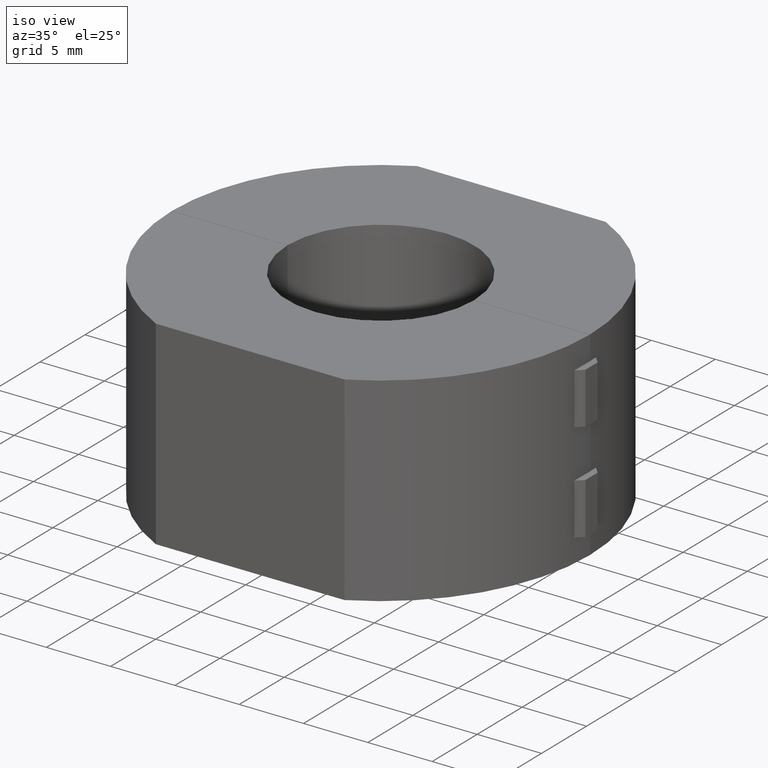
[diagram: clean part render]
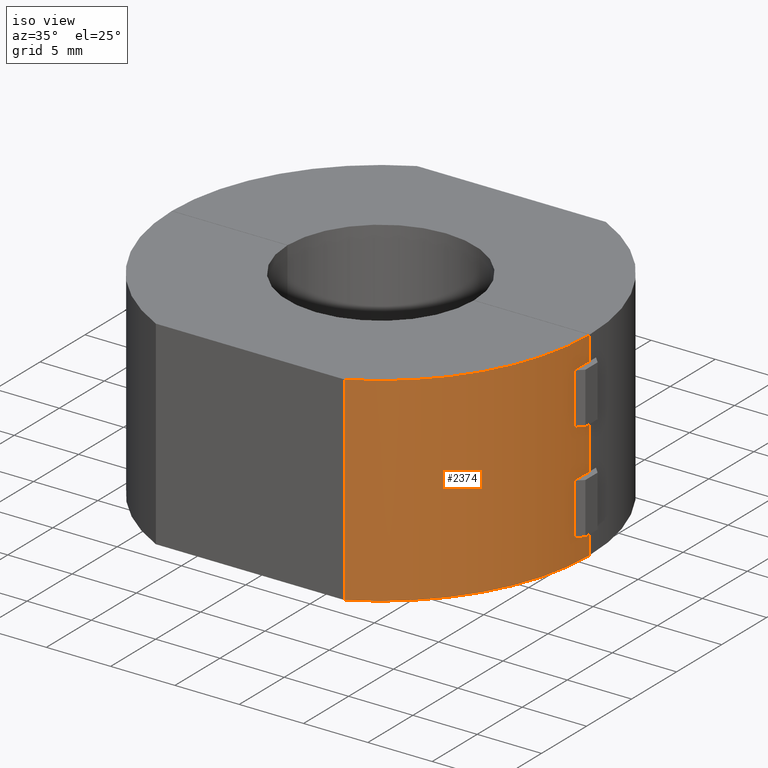
[diagram: same view with one face highlighted and labeled with its STEP entity id]
A machine part, iso view. The second image highlights one B-rep face of the part: STEP entity #2374.
In plain terms, the highlighted cylindrical surface (partial cylindrical patch) has radius 16.25 mm, axis along (0, 0, 1).
Its self-contained STEP definition (entity closure, byte-faithful):
#29 = DIRECTION ( 'NONE',  ( -0.0000000000000000000, -0.0000000000000000000, 1.000000000000000000 ) ) ;
#52 = VECTOR ( 'NONE', #29, 1000.000000000000000 ) ;
#56 = CARTESIAN_POINT ( 'NONE',  ( 0.0000000000000000000, 0.0000000000000000000, -1.874999999999999100 ) ) ;
#95 = CIRCLE ( 'NONE', #846, 16.25000000000000000 ) ;
#104 = VERTEX_POINT ( 'NONE', #2092 ) ;
#128 = CARTESIAN_POINT ( 'NONE',  ( 16.25000000000000000, -0.01000000000000000000, -7.750000000000000000 ) ) ;
#139 = DIRECTION ( 'NONE',  ( 1.000000000000000000, 0.0000000000000000000, 0.0000000000000000000 ) ) ;
#228 = ORIENTED_EDGE ( 'NONE', *, *, #2001, .T. ) ;
#249 = CIRCLE ( 'NONE', #332, 16.25000000000000000 ) ;
#273 = DIRECTION ( 'NONE',  ( -1.000000000000000000, 0.0000000000000000000, 0.0000000000000000000 ) ) ;
#295 = DIRECTION ( 'NONE',  ( -0.0000000000000000000, -0.0000000000000000000, 1.000000000000000000 ) ) ;
#298 = ORIENTED_EDGE ( 'NONE', *, *, #1196, .F. ) ;
#316 = EDGE_LOOP ( 'NONE', ( #835, #2615, #2492, #228, #1560, #1889, #707, #298, #2310, #1006, #2125, #388 ) ) ;
#330 = CARTESIAN_POINT ( 'NONE',  ( 0.0000000000000000000, 0.0000000000000000000, -5.874999999999999100 ) ) ;
#332 = AXIS2_PLACEMENT_3D ( 'NONE', #2334, #2155, #2814 ) ;
#361 = DIRECTION ( 'NONE',  ( -0.0000000000000000000, -0.0000000000000000000, 1.000000000000000000 ) ) ;
#380 = CARTESIAN_POINT ( 'NONE',  ( 0.0000000000000000000, 0.0000000000000000000, -7.750000000000000000 ) ) ;
#388 = ORIENTED_EDGE ( 'NONE', *, *, #1077, .F. ) ;
#400 = CARTESIAN_POINT ( 'NONE',  ( 7.335701109589304100, -14.49999962864724700, -7.750000000000000000 ) ) ;
#461 = EDGE_CURVE ( 'NONE', #1728, #476, #491, .T. ) ;
#476 = VERTEX_POINT ( 'NONE', #1599 ) ;
#482 = FACE_OUTER_BOUND ( 'NONE', #316, .T. ) ;
#491 = LINE ( 'NONE', #1134, #3090 ) ;
#562 = CARTESIAN_POINT ( 'NONE',  ( 16.23448336104347300, -0.7099647878610119100, 1.874999999999998200 ) ) ;
#585 = CARTESIAN_POINT ( 'NONE',  ( 16.25000000000000000, -0.01000000000000000000, 1.874999999999998200 ) ) ;
#591 = CARTESIAN_POINT ( 'NONE',  ( 7.335701109589304100, -14.50000307692278600, 7.750000000000000000 ) ) ;
#619 = CARTESIAN_POINT ( 'NONE',  ( 16.23448336104347300, -0.7099647878610119100, -5.874999999999999100 ) ) ;
#677 = CIRCLE ( 'NONE', #1319, 16.25000000000000000 ) ;
#688 = EDGE_CURVE ( 'NONE', #2659, #2994, #871, .T. ) ;
#693 = EDGE_CURVE ( 'NONE', #822, #2017, #1711, .T. ) ;
#707 = ORIENTED_EDGE ( 'NONE', *, *, #688, .T. ) ;
#789 = AXIS2_PLACEMENT_3D ( 'NONE', #380, #848, #139 ) ;
#822 = VERTEX_POINT ( 'NONE', #1828 ) ;
#827 = VECTOR ( 'NONE', #295, 1000.000000000000000 ) ;
#835 = ORIENTED_EDGE ( 'NONE', *, *, #461, .T. ) ;
#846 = AXIS2_PLACEMENT_3D ( 'NONE', #56, #2934, #273 ) ;
#848 = DIRECTION ( 'NONE',  ( 0.0000000000000000000, 0.0000000000000000000, 1.000000000000000000 ) ) ;
#862 = VERTEX_POINT ( 'NONE', #400 ) ;
#871 = LINE ( 'NONE', #2772, #1544 ) ;
#911 = VECTOR ( 'NONE', #1463, 1000.000000000000000 ) ;
#942 = EDGE_CURVE ( 'NONE', #476, #1205, #95, .T. ) ;
#960 = EDGE_CURVE ( 'NONE', #862, #2795, #1732, .T. ) ;
#1006 = ORIENTED_EDGE ( 'NONE', *, *, #2491, .T. ) ;
#1059 = DIRECTION ( 'NONE',  ( -0.0000000000000000000, -0.0000000000000000000, 1.000000000000000000 ) ) ;
#1077 = EDGE_CURVE ( 'NONE', #1728, #2017, #2686, .T. ) ;
#1122 = VERTEX_POINT ( 'NONE', #562 ) ;
#1134 = CARTESIAN_POINT ( 'NONE',  ( 16.23448336104348000, -0.7099647878609355300, -7.750000000000000000 ) ) ;
#1196 = EDGE_CURVE ( 'NONE', #2795, #2994, #1375, .T. ) ;
#1205 = VERTEX_POINT ( 'NONE', #1800 ) ;
#1271 = CARTESIAN_POINT ( 'NONE',  ( 16.25000000000000000, -0.01000000000000000000, 5.874999999999998200 ) ) ;
#1319 = AXIS2_PLACEMENT_3D ( 'NONE', #1847, #2382, #2634 ) ;
#1375 = CIRCLE ( 'NONE', #2843, 16.25000000000000000 ) ;
#1388 = DIRECTION ( 'NONE',  ( -0.0000000000000000000, 0.0000000000000000000, -1.000000000000000000 ) ) ;
#1451 = CARTESIAN_POINT ( 'NONE',  ( 16.23448336104348000, -0.7099647878609355300, -7.750000000000000000 ) ) ;
#1463 = DIRECTION ( 'NONE',  ( -0.0000000000000000000, -0.0000000000000000000, -1.000000000000000000 ) ) ;
#1544 = VECTOR ( 'NONE', #361, 1000.000000000000000 ) ;
#1560 = ORIENTED_EDGE ( 'NONE', *, *, #2239, .F. ) ;
#1589 = AXIS2_PLACEMENT_3D ( 'NONE', #330, #2479, #2267 ) ;
#1599 = CARTESIAN_POINT ( 'NONE',  ( 16.23448336104347300, -0.7099647878610119100, -1.874999999999999100 ) ) ;
#1634 = CARTESIAN_POINT ( 'NONE',  ( 16.25000000000000000, -0.01000000000000000000, 7.750000000000000000 ) ) ;
#1711 = LINE ( 'NONE', #128, #2561 ) ;
#1728 = VERTEX_POINT ( 'NONE', #619 ) ;
#1732 = LINE ( 'NONE', #1736, #827 ) ;
#1736 = CARTESIAN_POINT ( 'NONE',  ( 7.335701109589304100, -14.50000307692278600, -7.750000000000000000 ) ) ;
#1761 = VERTEX_POINT ( 'NONE', #585 ) ;
#1800 = CARTESIAN_POINT ( 'NONE',  ( 16.25000000000000000, -0.01000000000000000000, -1.874999999999999100 ) ) ;
#1828 = CARTESIAN_POINT ( 'NONE',  ( 16.25000000000000000, -0.01000000000000000000, -7.750000000000000000 ) ) ;
#1847 = CARTESIAN_POINT ( 'NONE',  ( 0.0000000000000000000, 0.0000000000000000000, 5.874999999999998200 ) ) ;
#1860 = LINE ( 'NONE', #2186, #52 ) ;
#1889 = ORIENTED_EDGE ( 'NONE', *, *, #2848, .F. ) ;
#1911 = CARTESIAN_POINT ( 'NONE',  ( 0.0000000000000000000, 0.0000000000000000000, 1.874999999999998200 ) ) ;
#2001 = EDGE_CURVE ( 'NONE', #1761, #1122, #2243, .T. ) ;
#2017 = VERTEX_POINT ( 'NONE', #3126 ) ;
#2089 = CYLINDRICAL_SURFACE ( 'NONE', #789, 16.25000000000000000 ) ;
#2092 = CARTESIAN_POINT ( 'NONE',  ( 16.23448336104347300, -0.7099647878610119100, 5.874999999999998200 ) ) ;
#2125 = ORIENTED_EDGE ( 'NONE', *, *, #693, .T. ) ;
#2155 = DIRECTION ( 'NONE',  ( 0.0000000000000000000, 0.0000000000000000000, 1.000000000000000000 ) ) ;
#2186 = CARTESIAN_POINT ( 'NONE',  ( 16.25000000000000000, -0.01000000000000000000, -7.750000000000000000 ) ) ;
#2235 = EDGE_CURVE ( 'NONE', #1205, #1761, #1860, .T. ) ;
#2239 = EDGE_CURVE ( 'NONE', #104, #1122, #3075, .T. ) ;
#2243 = CIRCLE ( 'NONE', #2323, 16.25000000000000000 ) ;
#2267 = DIRECTION ( 'NONE',  ( -1.000000000000000000, 0.0000000000000000000, 0.0000000000000000000 ) ) ;
#2291 = DIRECTION ( 'NONE',  ( 1.000000000000000000, 0.0000000000000000000, 0.0000000000000000000 ) ) ;
#2310 = ORIENTED_EDGE ( 'NONE', *, *, #960, .F. ) ;
#2323 = AXIS2_PLACEMENT_3D ( 'NONE', #1911, #1388, #2389 ) ;
#2334 = CARTESIAN_POINT ( 'NONE',  ( 0.0000000000000000000, 0.0000000000000000000, -7.750000000000000000 ) ) ;
#2374 = ADVANCED_FACE ( 'NONE', ( #482 ), #2089, .T. ) ;
#2382 = DIRECTION ( 'NONE',  ( -0.0000000000000000000, 0.0000000000000000000, -1.000000000000000000 ) ) ;
#2389 = DIRECTION ( 'NONE',  ( 1.000000000000000000, 0.0000000000000000000, 0.0000000000000000000 ) ) ;
#2479 = DIRECTION ( 'NONE',  ( -0.0000000000000000000, -0.0000000000000000000, 1.000000000000000000 ) ) ;
#2491 = EDGE_CURVE ( 'NONE', #862, #822, #249, .T. ) ;
#2492 = ORIENTED_EDGE ( 'NONE', *, *, #2235, .T. ) ;
#2549 = DIRECTION ( 'NONE',  ( 0.0000000000000000000, 0.0000000000000000000, 1.000000000000000000 ) ) ;
#2561 = VECTOR ( 'NONE', #1059, 1000.000000000000000 ) ;
#2615 = ORIENTED_EDGE ( 'NONE', *, *, #942, .T. ) ;
#2634 = DIRECTION ( 'NONE',  ( 1.000000000000000000, 0.0000000000000000000, 0.0000000000000000000 ) ) ;
#2659 = VERTEX_POINT ( 'NONE', #1271 ) ;
#2686 = CIRCLE ( 'NONE', #1589, 16.25000000000000000 ) ;
#2772 = CARTESIAN_POINT ( 'NONE',  ( 16.25000000000000000, -0.01000000000000000000, -7.750000000000000000 ) ) ;
#2795 = VERTEX_POINT ( 'NONE', #591 ) ;
#2813 = CARTESIAN_POINT ( 'NONE',  ( 0.0000000000000000000, 0.0000000000000000000, 7.750000000000000000 ) ) ;
#2814 = DIRECTION ( 'NONE',  ( 1.000000000000000000, 0.0000000000000000000, 0.0000000000000000000 ) ) ;
#2828 = DIRECTION ( 'NONE',  ( 0.0000000000000000000, 0.0000000000000000000, 1.000000000000000000 ) ) ;
#2843 = AXIS2_PLACEMENT_3D ( 'NONE', #2813, #2549, #2291 ) ;
#2848 = EDGE_CURVE ( 'NONE', #2659, #104, #677, .T. ) ;
#2934 = DIRECTION ( 'NONE',  ( -0.0000000000000000000, -0.0000000000000000000, 1.000000000000000000 ) ) ;
#2994 = VERTEX_POINT ( 'NONE', #1634 ) ;
#3075 = LINE ( 'NONE', #1451, #911 ) ;
#3090 = VECTOR ( 'NONE', #2828, 1000.000000000000000 ) ;
#3126 = CARTESIAN_POINT ( 'NONE',  ( 16.25000000000000000, -0.01000000000000000000, -5.874999999999999100 ) ) ;